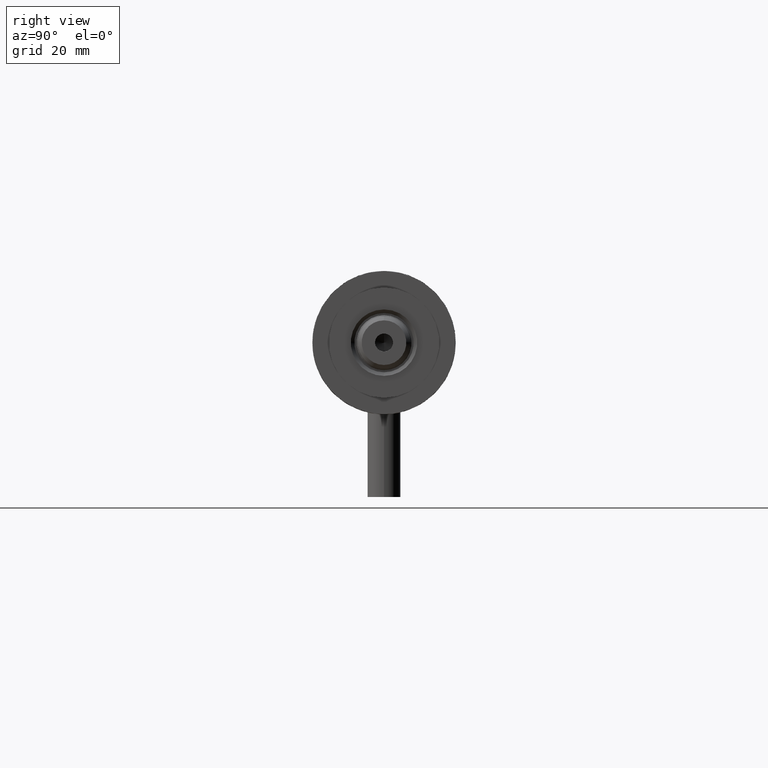
[diagram: clean part render]
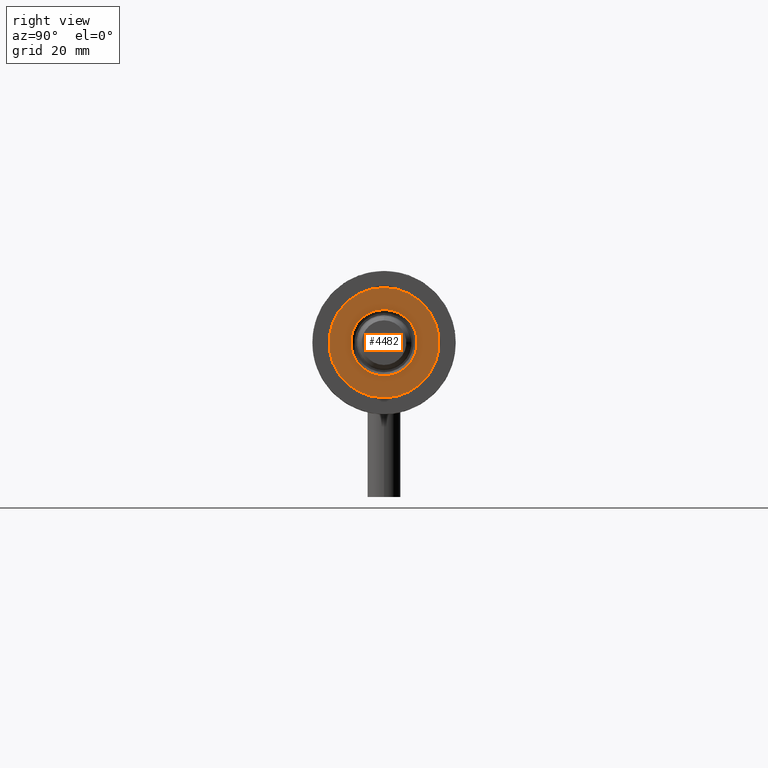
[diagram: same view with one face highlighted and labeled with its STEP entity id]
A machine part, right view. The second image highlights one B-rep face of the part: STEP entity #4482.
In plain terms, the highlighted planar face has unit normal (1, 0, -0).
Its self-contained STEP definition (entity closure, byte-faithful):
#32 = AXIS2_PLACEMENT_3D ( 'NONE', #1453, #3827, #4306 ) ;
#80 = EDGE_LOOP ( 'NONE', ( #1242, #2610 ) ) ;
#186 = AXIS2_PLACEMENT_3D ( 'NONE', #4627, #976, #234 ) ;
#234 = DIRECTION ( 'NONE',  ( 1.000000000000000000, 0.000000000000000000, 0.000000000000000000 ) ) ;
#334 = AXIS2_PLACEMENT_3D ( 'NONE', #1169, #4846, #5158 ) ;
#492 = DIRECTION ( 'NONE',  ( 1.000000000000000000, 0.000000000000000000, 0.000000000000000000 ) ) ;
#644 = VERTEX_POINT ( 'NONE', #1609 ) ;
#670 = EDGE_CURVE ( 'NONE', #1915, #644, #2599, .T. ) ;
#854 = CIRCLE ( 'NONE', #5133, 19.99999999999999645 ) ;
#976 = DIRECTION ( 'NONE',  ( -0.000000000000000000, -0.000000000000000000, -1.000000000000000000 ) ) ;
#1102 = CARTESIAN_POINT ( 'NONE',  ( 0.000000000000000000, 0.000000000000000000, 33.50000000000000000 ) ) ;
#1107 = FACE_BOUND ( 'NONE', #80, .T. ) ;
#1169 = CARTESIAN_POINT ( 'NONE',  ( 0.000000000000000000, 0.000000000000000000, 33.50000000000000000 ) ) ;
#1242 = ORIENTED_EDGE ( 'NONE', *, *, #1978, .T. ) ;
#1453 = CARTESIAN_POINT ( 'NONE',  ( 0.000000000000000000, 0.000000000000000000, 33.50000000000000000 ) ) ;
#1609 = CARTESIAN_POINT ( 'NONE',  ( 19.99999999999999645, 2.449293598294706119E-15, 33.50000000000000000 ) ) ;
#1838 = EDGE_CURVE ( 'NONE', #644, #1915, #854, .T. ) ;
#1874 = CIRCLE ( 'NONE', #3463, 12.05000000000000426 ) ;
#1915 = VERTEX_POINT ( 'NONE', #2729 ) ;
#1978 = EDGE_CURVE ( 'NONE', #3792, #3124, #2695, .T. ) ;
#2020 = DIRECTION ( 'NONE',  ( 0.000000000000000000, 0.000000000000000000, 1.000000000000000000 ) ) ;
#2271 = DIRECTION ( 'NONE',  ( 1.000000000000000000, 0.000000000000000000, 0.000000000000000000 ) ) ;
#2326 = FACE_OUTER_BOUND ( 'NONE', #4603, .T. ) ;
#2599 = CIRCLE ( 'NONE', #334, 19.99999999999999645 ) ;
#2610 = ORIENTED_EDGE ( 'NONE', *, *, #4897, .T. ) ;
#2695 = CIRCLE ( 'NONE', #186, 12.05000000000000426 ) ;
#2729 = CARTESIAN_POINT ( 'NONE',  ( -19.99999999999999645, 0.000000000000000000, 33.50000000000000000 ) ) ;
#3124 = VERTEX_POINT ( 'NONE', #3977 ) ;
#3463 = AXIS2_PLACEMENT_3D ( 'NONE', #1102, #3897, #2271 ) ;
#3792 = VERTEX_POINT ( 'NONE', #4115 ) ;
#3827 = DIRECTION ( 'NONE',  ( 0.000000000000000000, 0.000000000000000000, 1.000000000000000000 ) ) ;
#3897 = DIRECTION ( 'NONE',  ( -0.000000000000000000, -0.000000000000000000, -1.000000000000000000 ) ) ;
#3977 = CARTESIAN_POINT ( 'NONE',  ( -12.05000000000000426, 1.475699392972560823E-15, 33.50000000000000000 ) ) ;
#4115 = CARTESIAN_POINT ( 'NONE',  ( 12.05000000000000426, 0.000000000000000000, 33.50000000000000000 ) ) ;
#4306 = DIRECTION ( 'NONE',  ( 1.000000000000000000, 0.000000000000000000, -0.000000000000000000 ) ) ;
#4458 = ORIENTED_EDGE ( 'NONE', *, *, #1838, .T. ) ;
#4482 = ADVANCED_FACE ( 'NONE', ( #1107, #2326 ), #5122, .T. ) ;
#4603 = EDGE_LOOP ( 'NONE', ( #4706, #4458 ) ) ;
#4627 = CARTESIAN_POINT ( 'NONE',  ( 0.000000000000000000, 0.000000000000000000, 33.50000000000000000 ) ) ;
#4706 = ORIENTED_EDGE ( 'NONE', *, *, #670, .T. ) ;
#4840 = CARTESIAN_POINT ( 'NONE',  ( 0.000000000000000000, 0.000000000000000000, 33.50000000000000000 ) ) ;
#4846 = DIRECTION ( 'NONE',  ( 0.000000000000000000, 0.000000000000000000, 1.000000000000000000 ) ) ;
#4897 = EDGE_CURVE ( 'NONE', #3124, #3792, #1874, .T. ) ;
#5122 = PLANE ( 'NONE',  #32 ) ;
#5133 = AXIS2_PLACEMENT_3D ( 'NONE', #4840, #2020, #492 ) ;
#5158 = DIRECTION ( 'NONE',  ( 1.000000000000000000, 0.000000000000000000, 0.000000000000000000 ) ) ;